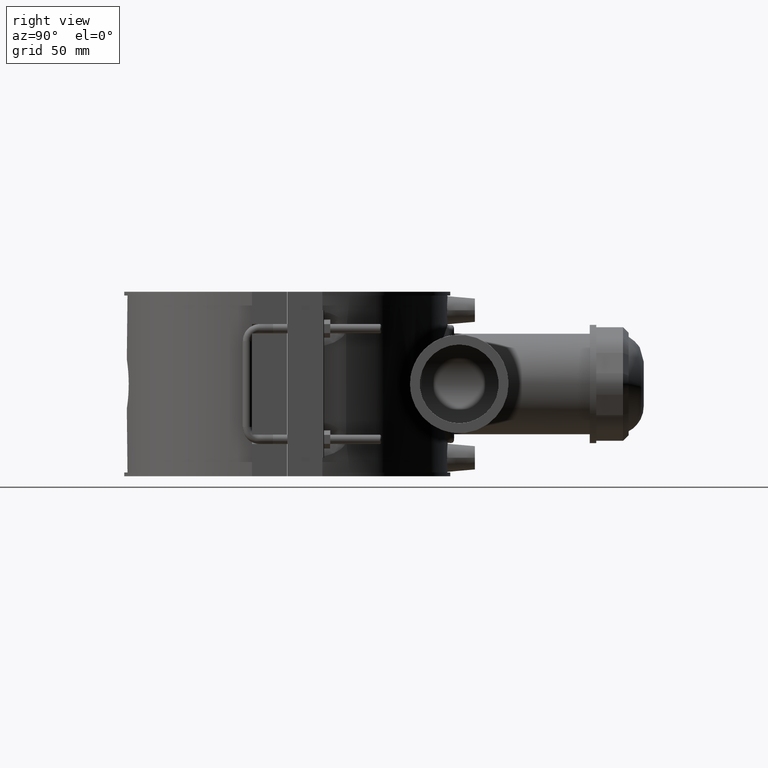
[diagram: clean part render]
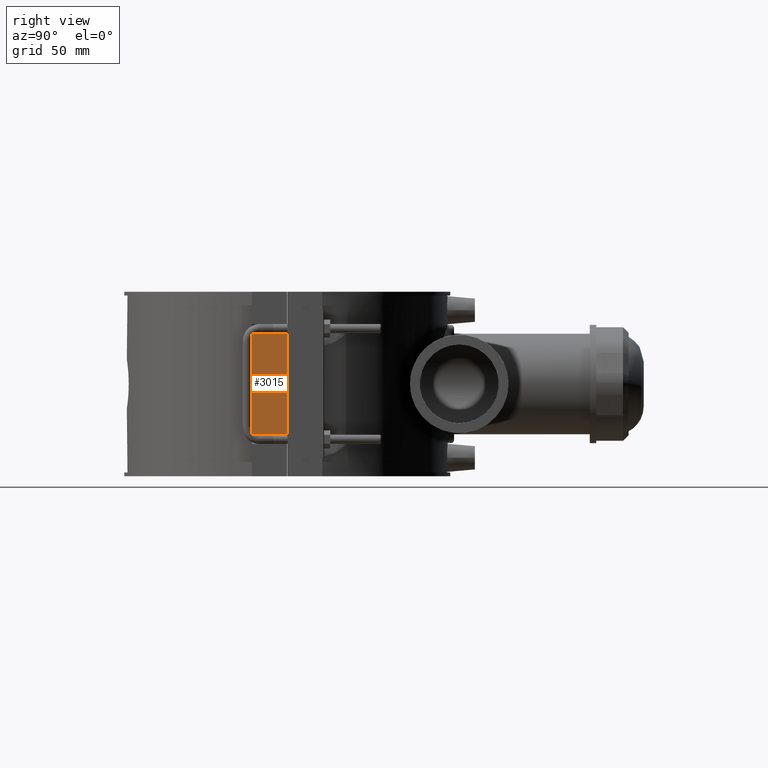
[diagram: same view with one face highlighted and labeled with its STEP entity id]
A machine part, right view. The second image highlights one B-rep face of the part: STEP entity #3015.
In plain terms, the highlighted planar face has unit normal (1, 0, 0).
Its self-contained STEP definition (entity closure, byte-faithful):
#80=LINE('',#4563,#359);
#81=LINE('',#4565,#360);
#82=LINE('',#4567,#361);
#83=LINE('',#4568,#362);
#359=VECTOR('',#3547,22.45);
#360=VECTOR('',#3548,64.8);
#361=VECTOR('',#3549,22.45);
#362=VECTOR('',#3550,64.8);
#604=PLANE('',#3207);
#870=FACE_OUTER_BOUND('',#1055,.T.);
#1055=EDGE_LOOP('',(#2123,#2124,#2125,#2126));
#1375=VERTEX_POINT('',#4561);
#1376=VERTEX_POINT('',#4562);
#1377=VERTEX_POINT('',#4564);
#1378=VERTEX_POINT('',#4566);
#1675=EDGE_CURVE('',#1375,#1376,#80,.T.);
#1676=EDGE_CURVE('',#1377,#1376,#81,.T.);
#1677=EDGE_CURVE('',#1377,#1378,#82,.T.);
#1678=EDGE_CURVE('',#1378,#1375,#83,.T.);
#2123=ORIENTED_EDGE('',*,*,#1675,.T.);
#2124=ORIENTED_EDGE('',*,*,#1676,.F.);
#2125=ORIENTED_EDGE('',*,*,#1677,.T.);
#2126=ORIENTED_EDGE('',*,*,#1678,.T.);
#3015=ADVANCED_FACE('',(#870),#604,.T.);
#3207=AXIS2_PLACEMENT_3D('',#4560,#3545,#3546);
#3545=DIRECTION('center_axis',(1.,0.,0.));
#3546=DIRECTION('ref_axis',(0.,1.,0.));
#3547=DIRECTION('',(0.,-1.,0.));
#3548=DIRECTION('',(0.,0.,1.));
#3549=DIRECTION('',(0.,1.,0.));
#3550=DIRECTION('',(0.,0.,1.));
#4560=CARTESIAN_POINT('Origin',(109.5,-22.5,0.));
#4561=CARTESIAN_POINT('',(109.5,-0.0499999999999989,32.4));
#4562=CARTESIAN_POINT('',(109.5,-22.5,32.4));
#4563=CARTESIAN_POINT('',(109.5,-22.5,32.4));
#4564=CARTESIAN_POINT('',(109.5,-22.5,-32.4));
#4565=CARTESIAN_POINT('',(109.5,-22.5,0.));
#4566=CARTESIAN_POINT('',(109.5,-0.0499999999999989,-32.4));
#4567=CARTESIAN_POINT('',(109.5,-22.5,-32.4));
#4568=CARTESIAN_POINT('',(109.5,-0.0499999999999989,-29.5));